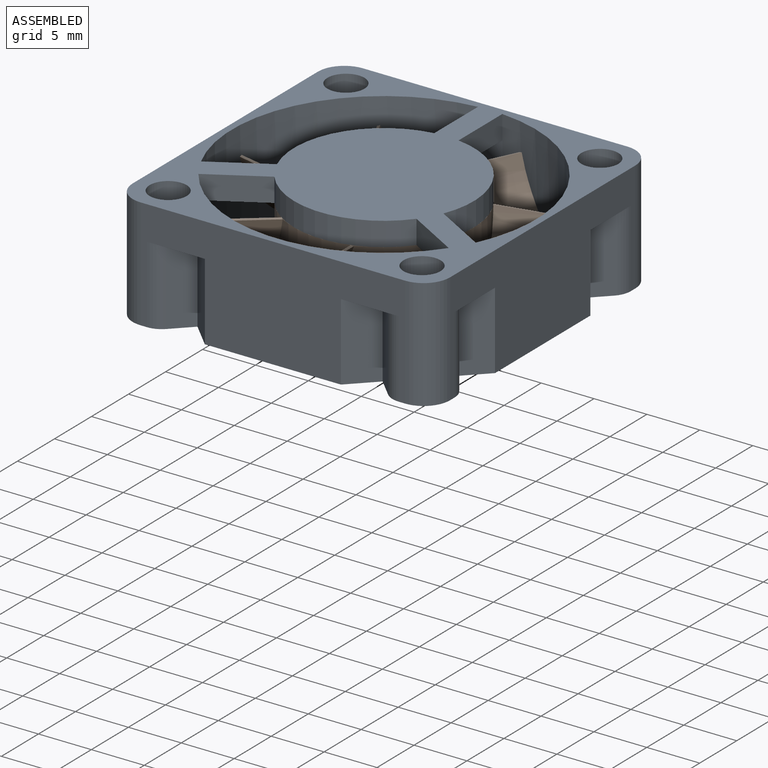
[diagram: assembled view]
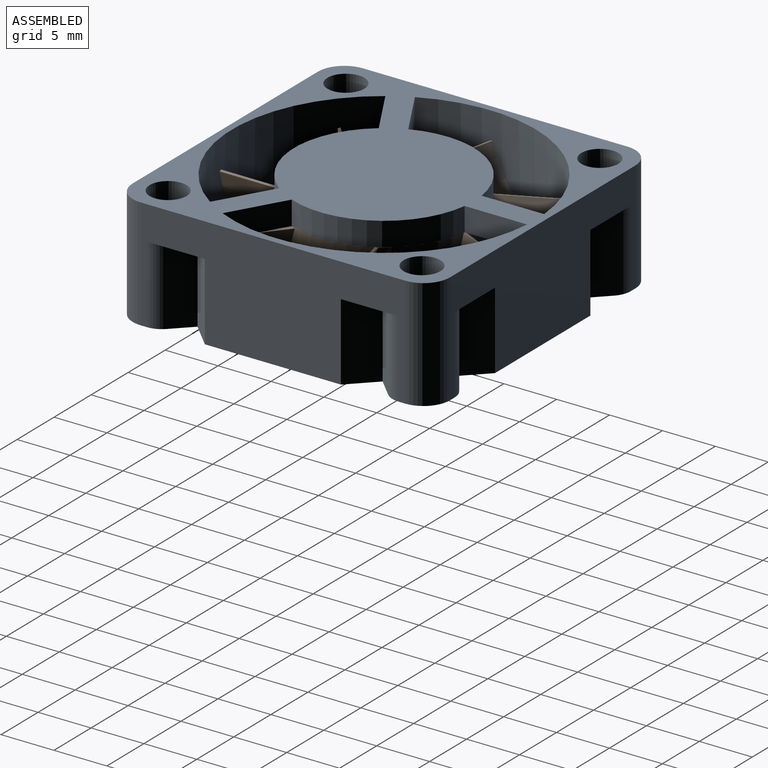
[diagram: assembled view, second angle]
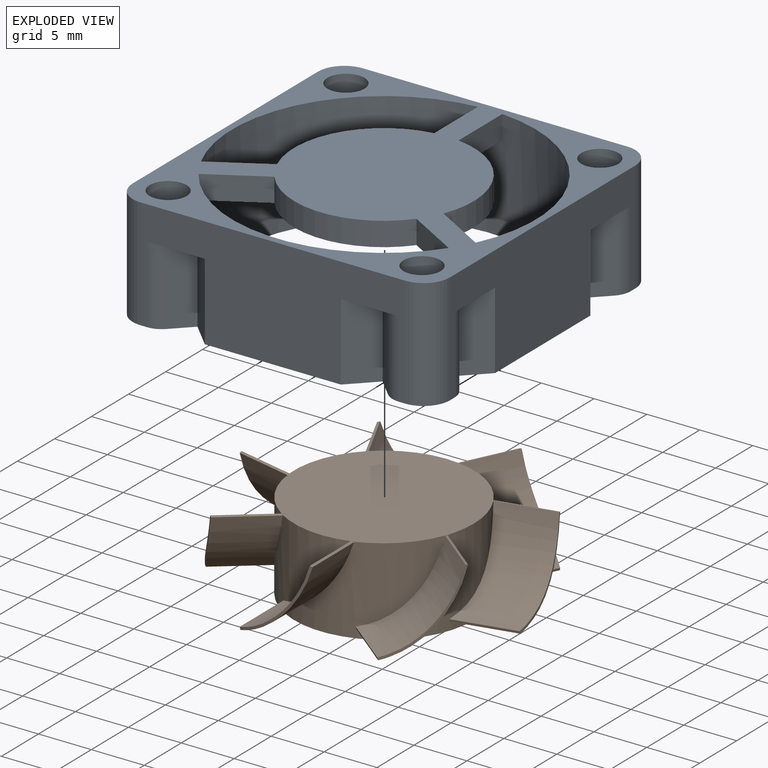
[diagram: exploded view]
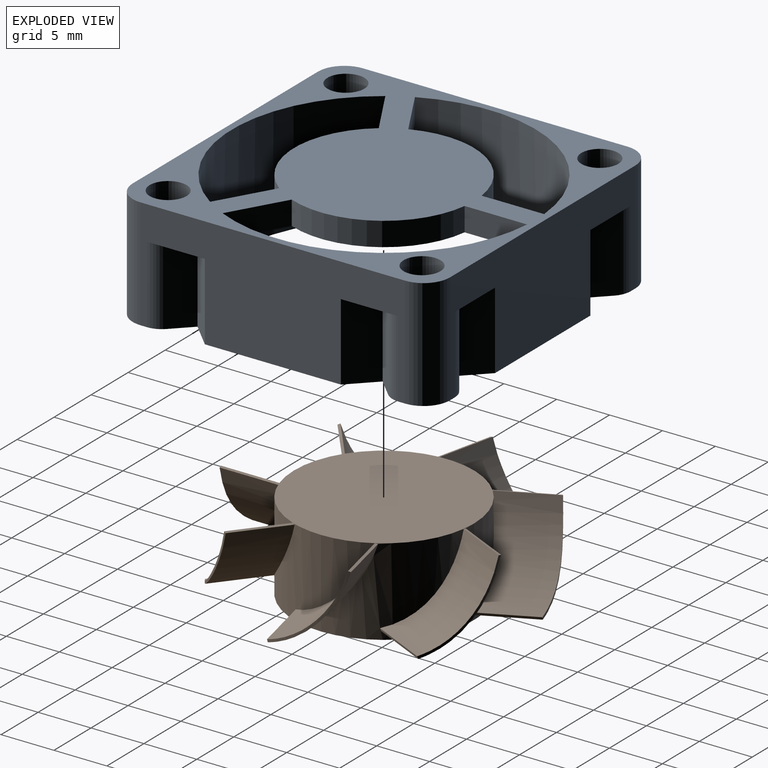
[diagram: exploded view, second angle]
ASSEMBLY  parts=2 mates=2
PART A: 57 faces, bbox 30x30x10.5 mm
  f0: plane 30x30mm, normal (0,0,-1), area 163.2mm2, adj f1,f2,f3,f4,f5,f6,f7,f19
  f1: plane 25x10.5mm, normal (1,0,0), area 182.7mm2, adj f0,f4,f7,f18,f43,f45,f47,f48
  f2: plane 25x10.5mm, normal (0,-1,0), area 182.7mm2, adj f0,f3,f4,f18,f37,f39,f40,f42
  f3: cylinder r=2.5mm len=10.5mm, axis (0,0,-1), area 41.2mm2, adj f0,f2,f18,f20
  f4: cylinder r=2.5mm len=10.5mm, axis (0,0,1), area 41.2mm2, adj f0,f1,f2,f18
  f5: cylinder r=2.5mm len=10.5mm, axis (0,0,1), area 41.2mm2, adj f0,f18,f20,f21
  f6: cylinder r=14.38mm len=28.75mm, axis (0,0,1), area 932.8mm2, adj f0,f9,f12,f13,f14,f15,f16,f17
  f7: cylinder r=2.5mm len=10.5mm, axis (0,0,-1), area 41.2mm2, adj f0,f1,f18,f21
  f8: cylinder r=8.5mm len=11.64mm, axis (0,0,-1), area 34.9mm2, adj f9,f16,f17,f18
  f9: plane 5.12x2.95mm, normal (0.5,0.87,0), area 13.3mm2, adj f6,f8,f17,f18
  f10: cylinder r=8.5mm len=11.64mm, axis (0,0,-1), area 34.9mm2, adj f14,f15,f17,f18
  f11: cylinder r=8.5mm len=13.44mm, axis (0,0,-1), area 34.9mm2, adj f12,f13,f17,f18
  f12: plane 5.12x2.95mm, normal (-0.5,-0.87,0), area 13.3mm2, adj f6,f11,f17,f18
  f13: plane 5.12x2.95mm, normal (0.5,-0.87,0), area 13.3mm2, adj f6,f11,f17,f18
  f14: plane 5.12x2.95mm, normal (-0.5,0.87,0), area 13.3mm2, adj f6,f10,f17,f18
  f15: plane 5.91x2.25mm, normal (-1,0,0), area 13.3mm2, adj f6,f10,f17,f18
  f16: plane 5.91x2.25mm, normal (1,0,0), area 13.3mm2, adj f6,f8,f17,f18
  f17: plane 25.97x22.88mm, normal (0,0,-1), area 267.6mm2, adj f6,f8,f9,f10,f11,f12,f13,f14
  f18: plane 30x30mm, normal (0,0,1), area 474.6mm2, adj f1,f2,f3,f4,f5,f6,f7,f8
  f19: cylinder r=1.75mm len=10.5mm, axis (0,0,1), area 115.5mm2, adj f0,f18
  f20: plane 25x10.5mm, normal (-1,0,0), area 182.7mm2, adj f0,f3,f5,f18,f31,f33,f34,f36
  f21: plane 25x10.5mm, normal (0,1,0), area 182.7mm2, adj f0,f5,f7,f18,f25,f27,f29,f30
  f22: cylinder r=1.75mm len=10.5mm, axis (0,0,1), area 115.5mm2, adj f0,f18
  f23: cylinder r=1.75mm len=10.5mm, axis (0,0,1), area 115.5mm2, adj f0,f18
  f24: cylinder r=1.75mm len=10.5mm, axis (0,0,1), area 115.5mm2, adj f0,f18
  f25: plane 7.3x2.32mm, normal (-0.71,0.71,0), area 23.9mm2, adj f0,f21,f26,f27
  f26: plane 7.3x1.73mm, normal (0.71,0.71,0), area 17.9mm2, adj f0,f25,f27,f55
  f27: plane 5.47x2.32mm, normal (0,0,-1), area 5.5mm2, adj f21,f25,f26,f55
  f28: plane 7.3x1.73mm, normal (-0.71,0.71,0), area 17.9mm2, adj f0,f29,f30,f49
  f29: plane 7.3x2.32mm, normal (0.71,0.71,0), area 23.9mm2, adj f0,f21,f28,f30
  f30: plane 5.47x2.32mm, normal (0,0,-1), area 5.5mm2, adj f21,f28,f29,f49
  f31: plane 7.3x2.32mm, normal (-0.71,0.71,0), area 23.9mm2, adj f0,f20,f32,f33
  f32: plane 7.3x1.73mm, normal (-0.71,-0.71,0), area 17.9mm2, adj f0,f31,f33,f54
  f33: plane 5.47x2.32mm, normal (0,0,-1), area 5.5mm2, adj f20,f31,f32,f54
  f34: plane 7.3x2.32mm, normal (-0.71,-0.71,0), area 23.9mm2, adj f0,f20,f35,f36
  f35: plane 7.3x1.73mm, normal (-0.71,0.71,0), area 17.9mm2, adj f0,f34,f36,f52
  f36: plane 5.47x2.32mm, normal (0,0,-1), area 5.5mm2, adj f20,f34,f35,f52
  f37: plane 7.3x2.32mm, normal (-0.71,-0.71,0), area 23.9mm2, adj f0,f2,f38,f39
  f38: plane 7.3x1.73mm, normal (0.71,-0.71,0), area 17.9mm2, adj f0,f37,f39,f53
  f39: plane 5.47x2.32mm, normal (0,0,-1), area 5.5mm2, adj f2,f37,f38,f53
  f40: plane 7.3x2.32mm, normal (0.71,-0.71,0), area 23.9mm2, adj f0,f2,f41,f42
  f41: plane 7.3x1.73mm, normal (-0.71,-0.71,0), area 17.9mm2, adj f0,f40,f42,f50
  f42: plane 5.47x2.32mm, normal (0,0,-1), area 5.5mm2, adj f2,f40,f41,f50
  f43: plane 7.3x2.32mm, normal (0.71,0.71,0), area 23.9mm2, adj f0,f1,f44,f45
  f44: plane 7.3x1.73mm, normal (0.71,-0.71,0), area 17.9mm2, adj f0,f43,f45,f56
  f45: plane 5.47x2.32mm, normal (0,0,-1), area 5.5mm2, adj f1,f43,f44,f56
  f46: plane 7.3x1.73mm, normal (0.71,0.71,0), area 17.9mm2, adj f0,f47,f48,f51
  f47: plane 7.3x2.32mm, normal (0.71,-0.71,0), area 23.9mm2, adj f0,f1,f46,f48
  f48: plane 5.47x2.32mm, normal (0,0,-1), area 5.5mm2, adj f1,f46,f47,f51
  f49: cylinder r=2mm len=7.3mm, axis (0,0,1), area 11.5mm2, adj f0,f21,f28,f30
  f50: cylinder r=2mm len=7.3mm, axis (0,0,1), area 11.5mm2, adj f0,f2,f41,f42
  f51: cylinder r=2mm len=7.3mm, axis (0,0,-1), area 11.5mm2, adj f0,f1,f46,f48
  f52: cylinder r=2mm len=7.3mm, axis (0,0,-1), area 11.5mm2, adj f0,f20,f35,f36
  f53: cylinder r=2mm len=7.3mm, axis (0,0,-1), area 11.5mm2, adj f0,f2,f38,f39
  f54: cylinder r=2mm len=7.3mm, axis (0,0,1), area 11.5mm2, adj f0,f20,f32,f33
  f55: cylinder r=2mm len=7.3mm, axis (0,0,-1), area 11.5mm2, adj f0,f21,f26,f27
  f56: cylinder r=2mm len=7.3mm, axis (0,0,1), area 11.5mm2, adj f0,f1,f44,f45
PART B: 39 faces, bbox 28.2x28.1x8.3 mm
  f0: cylinder r=10.55mm len=9.5mm, axis (0.78,0.62,0), area 61.5mm2, adj f1,f19,f25,f37
  f1: cylinder r=13.88mm len=7.49mm, axis (0,0,1), area 2.7mm2, adj f0,f19,f20,f25
  f2: cylinder r=10.3mm len=7.25mm, axis (0,1,0), area 60mm2, adj f10,f11,f26,f37
  f3: cylinder r=10.3mm len=9.42mm, axis (-0.78,0.62,0), area 60mm2, adj f7,f22,f27,f37
  f4: plane 5.75x1.39mm, normal (0.21,-0.93,-0.29), area 1.5mm2, adj f5,f8,f28,f37
  f5: cylinder r=10.3mm len=8.21mm, axis (-0.97,-0.22,0), area 55.8mm2, adj f4,f28,f33,f37,f38
  f6: cylinder r=10.55mm len=9.5mm, axis (-0.78,0.62,0), area 61.5mm2, adj f7,f22,f27,f37
  f7: plane 4.44x3.69mm, normal (0.16,0.2,0.97), area 1.4mm2, adj f3,f6,f27,f37
  f8: cylinder r=10.55mm len=8.35mm, axis (-0.97,-0.22,0), area 57.2mm2, adj f4,f28,f33,f37
  f9: cylinder r=10.55mm len=7.43mm, axis (0,1,0), area 61.5mm2, adj f10,f11,f26,f37
  f10: plane 5.92x0.24mm, normal (-0.96,0,-0.29), area 1.5mm2, adj f2,f9,f26,f37
  f11: plane 5.61x0.24mm, normal (0.25,0,0.97), area 1.4mm2, adj f2,f9,f26,f37
  f12: cylinder r=10.3mm len=9.04mm, axis (0.43,-0.9,0), area 60mm2, adj f16,f18,f30,f37
  f13: plane 5.78x1.38mm, normal (0.21,0.93,-0.29), area 1.5mm2, adj f14,f17,f31,f37
  f14: cylinder r=10.3mm len=8.21mm, axis (0.97,-0.22,0), area 60mm2, adj f13,f24,f31,f37
  f15: cylinder r=10.55mm len=9.15mm, axis (0.43,-0.9,0), area 61.5mm2, adj f16,f18,f30,f37
  f16: plane 5.16x2.59mm, normal (-0.23,-0.11,0.97), area 1.4mm2, adj f12,f15,f30,f37
  f17: cylinder r=10.55mm len=8.36mm, axis (0.97,-0.22,0), area 61.5mm2, adj f13,f24,f31,f37
  f18: plane 5.31x2.63mm, normal (0.86,0.41,-0.29), area 1.5mm2, adj f12,f15,f30,f37
  f19: plane 4.62x3.74mm, normal (-0.6,0.75,-0.29), area 1.5mm2, adj f0,f1,f20,f37
  f20: cylinder r=10.3mm len=9.42mm, axis (0.78,0.62,0), area 60mm2, adj f1,f19,f25,f37
  f21: plane 17x17mm, normal (0,0,-1), area 227mm2, adj f37
  f22: plane 4.67x3.71mm, normal (-0.6,-0.75,-0.29), area 1.5mm2, adj f3,f6,f27,f37
  f23: plane 5.36x2.61mm, normal (0.86,-0.42,-0.29), area 1.5mm2, adj f29,f34,f35,f37
  f24: plane 5.42x1.49mm, normal (-0.06,-0.25,0.97), area 1.4mm2, adj f14,f17,f31,f37
  f25: plane 4.54x3.6mm, normal (0.16,-0.2,0.97), area 1.4mm2, adj f0,f1,f20,f37
  f26: cylinder r=13.88mm len=7.49mm, axis (0,0,1), area 2.7mm2, adj f2,f9,f10,f11
  f27: cylinder r=13.88mm len=7.49mm, axis (0,0,1), area 2.7mm2, adj f3,f6,f7,f22
  f28: cylinder r=13.88mm len=7.49mm, axis (0,0,1), area 2.7mm2, adj f4,f5,f8,f33
  f29: cylinder r=13.88mm len=7.49mm, axis (0,0,1), area 2.7mm2, adj f23,f32,f34,f35
  f30: cylinder r=13.88mm len=7.49mm, axis (0,0,1), area 2.7mm2, adj f12,f15,f16,f18
  f31: cylinder r=13.88mm len=7.49mm, axis (0,0,1), area 2.7mm2, adj f13,f14,f17,f24
  f32: plane 5.04x2.65mm, normal (-0.23,0.11,0.97), area 1.4mm2, adj f29,f34,f35,f37
  f33: plane 5.52x1.45mm, normal (-0.06,0.25,0.97), area 1.4mm2, adj f5,f8,f28,f37
  f34: cylinder r=10.55mm len=9.16mm, axis (-0.43,-0.9,0), area 61.5mm2, adj f23,f29,f32,f37
  f35: cylinder r=10.3mm len=9.04mm, axis (-0.43,-0.9,0), area 60mm2, adj f23,f29,f32,f37
  f36: plane 17x17mm, normal (0,0,1), area 227mm2, adj f37,f38
  f37: cylinder r=8.5mm len=17mm, axis (0,0,-1), area 404.2mm2, adj f0,f2,f3,f4,f5,f6,f7,f8
  f38: cylinder r=8.5mm len=6.08mm, axis (0,0,-1), area 13.6mm2, adj f5,f36,f37
PLACE A t=(22.97,-24.73,0)mm
PLACE B t=(22.97,-24.73,0)mm
MATE planar B.f1 <-> A.f6  axis (0,0,1) through (22.97,-24.73,8.25)mm
MATE cylindrical B.f1 <-> A.f6  axis (0,0,-1) through (22.97,-24.73,4.12)mm
